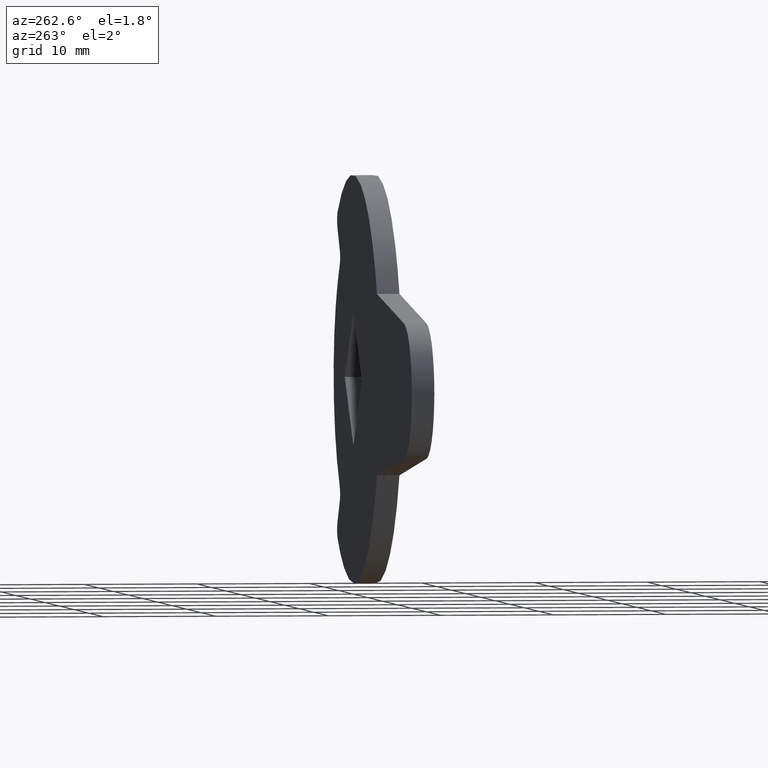
[diagram: clean part render]
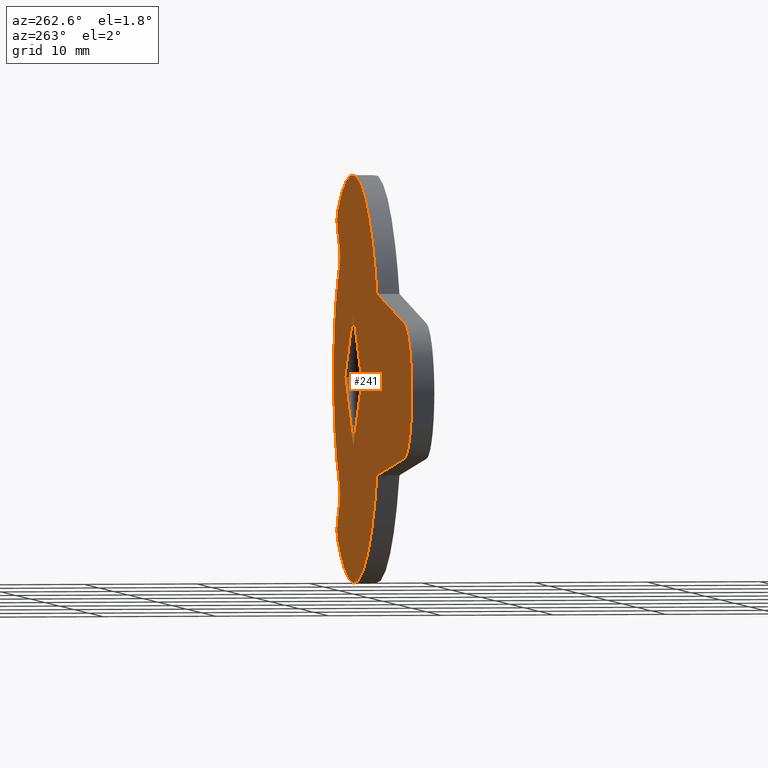
[diagram: same view with one face highlighted and labeled with its STEP entity id]
A machine part, auxiliary view. The second image highlights one B-rep face of the part: STEP entity #241.
In plain terms, the highlighted face is a freeform B-spline surface patch.
Its self-contained STEP definition (entity closure, byte-faithful):
#44=CARTESIAN_POINT('',(-42.672116572253323,0.0,19.798160962117120));
#45=CARTESIAN_POINT('',(16.172309228567340,0.0,19.798160962117120));
#46=CARTESIAN_POINT('',(-42.672116572253323,0.0,-19.798180562017890));
#47=CARTESIAN_POINT('',(16.172309228567340,0.0,-19.798180562017890));
#48=B_SPLINE_SURFACE_WITH_KNOTS('',1,1,((#44,#46),(#45,#47)),.UNSPECIFIED.,.F.,.F.,.U.,(2,2),(2,2),(0.0,58.844425800820659),(0.0,39.596341524135013),.UNSPECIFIED.);
#49=CARTESIAN_POINT('',(10.739072857427660,0.0,14.445526761286960));
#50=VERTEX_POINT('',#49);
#51=CARTESIAN_POINT('',(-16.124516390019298,0.0,7.999998199249760));
#52=VERTEX_POINT('',#51);
#53=CARTESIAN_POINT('',(10.739072857427670,0.0,14.445526761286979));
#54=CARTESIAN_POINT('',(3.984586888391954,0.0,19.466919151968000));
#55=CARTESIAN_POINT('',(-4.199630048120304,0.0,17.503235016676509));
#56=CARTESIAN_POINT('',(-12.383846984632562,0.0,15.539550881385031));
#57=CARTESIAN_POINT('',(-16.124516390019298,0.0,7.999998199249757));
#65=(BOUNDED_CURVE()B_SPLINE_CURVE(2,(#53,#54,#55,#56,#57),.UNSPECIFIED.,.F.,.U.)B_SPLINE_CURVE_WITH_KNOTS((3,2,3),(0.0,0.500000000000000,1.0),.UNSPECIFIED.)CURVE()GEOMETRIC_REPRESENTATION_ITEM()RATIONAL_B_SPLINE_CURVE((1.0,0.905864952288434,1.0,0.905864952288434,1.0))REPRESENTATION_ITEM(''));
#66=EDGE_CURVE('',#50,#52,#65,.T.);
#67=ORIENTED_EDGE('',*,*,#66,.F.);
#68=CARTESIAN_POINT('',(10.903888410533700,0.0,12.994704011808579));
#69=VERTEX_POINT('',#68);
#70=CARTESIAN_POINT('',(10.903888410533691,0.0,12.994704011808590));
#71=CARTESIAN_POINT('',(11.185033449869259,0.0,13.324930315200996));
#72=CARTESIAN_POINT('',(11.136079863433119,0.0,13.755854311945500));
#73=CARTESIAN_POINT('',(11.087126276996973,0.0,14.186778308690002));
#74=CARTESIAN_POINT('',(10.739072857427660,0.0,14.445526761286960));
#82=(BOUNDED_CURVE()B_SPLINE_CURVE(2,(#70,#71,#72,#73,#74),.UNSPECIFIED.,.F.,.U.)B_SPLINE_CURVE_WITH_KNOTS((3,2,3),(0.0,0.500000000000000,1.0),.UNSPECIFIED.)CURVE()GEOMETRIC_REPRESENTATION_ITEM()RATIONAL_B_SPLINE_CURVE((1.0,0.917438250668628,1.0,0.917438250668628,1.0))REPRESENTATION_ITEM(''));
#83=EDGE_CURVE('',#69,#50,#82,.T.);
#84=ORIENTED_EDGE('',*,*,#83,.F.);
#85=CARTESIAN_POINT('',(9.302911589465209,0.0,11.086695988190041));
#86=VERTEX_POINT('',#85);
#87=CARTESIAN_POINT('',(9.302911589465209,0.0,11.086695988190041));
#88=CARTESIAN_POINT('',(10.903888410533700,0.0,12.994704011808579));
#89=QUASI_UNIFORM_CURVE('',1,(#87,#88),.UNSPECIFIED.,.F.,.U.);
#90=EDGE_CURVE('',#86,#69,#89,.T.);
#91=ORIENTED_EDGE('',*,*,#90,.F.);
#92=CARTESIAN_POINT('',(9.370201414459581,0.0,9.718512161401019));
#93=VERTEX_POINT('',#92);
#94=CARTESIAN_POINT('',(9.302911589465223,0.0,11.086695988190030));
#95=CARTESIAN_POINT('',(8.693486324254092,0.0,10.370976687546957));
#96=CARTESIAN_POINT('',(9.370201414459581,0.0,9.718512161401019));
#104=(BOUNDED_CURVE()B_SPLINE_CURVE(2,(#94,#95,#96),.UNSPECIFIED.,.F.,.U.)CURVE()GEOMETRIC_REPRESENTATION_ITEM()QUASI_UNIFORM_CURVE()RATIONAL_B_SPLINE_CURVE((1.0,0.728615029616869,1.0))REPRESENTATION_ITEM(''));
#105=EDGE_CURVE('',#86,#93,#104,.T.);
#106=ORIENTED_EDGE('',*,*,#105,.T.);
#107=CARTESIAN_POINT('',(9.370232998813620,0.0,-9.718481708829620));
#108=VERTEX_POINT('',#107);
#109=CARTESIAN_POINT('',(9.370232998813620,0.0,-9.718481708829620));
#110=CARTESIAN_POINT('',(13.500002456554789,0.0,-5.736679563119537));
#111=CARTESIAN_POINT('',(13.499993134639389,0.0,0.000021937009817));
#112=CARTESIAN_POINT('',(13.499983812723983,0.0,5.736723437139174));
#113=CARTESIAN_POINT('',(9.370201414459583,0.0,9.718512161401019));
#121=(BOUNDED_CURVE()B_SPLINE_CURVE(2,(#109,#110,#111,#112,#113),.UNSPECIFIED.,.F.,.U.)B_SPLINE_CURVE_WITH_KNOTS((3,2,3),(0.0,0.500000000000000,1.0),.UNSPECIFIED.)CURVE()GEOMETRIC_REPRESENTATION_ITEM()RATIONAL_B_SPLINE_CURVE((1.0,0.920350869292249,1.0,0.920350869292249,1.0))REPRESENTATION_ITEM(''));
#122=EDGE_CURVE('',#108,#93,#121,.T.);
#123=ORIENTED_EDGE('',*,*,#122,.F.);
#124=CARTESIAN_POINT('',(9.302911589452830,0.0,-11.086695988175499));
#125=VERTEX_POINT('',#124);
#126=CARTESIAN_POINT('',(9.370232998813631,0.0,-9.718481708829630));
#127=CARTESIAN_POINT('',(8.693520258589841,0.0,-10.370948212983244));
#128=CARTESIAN_POINT('',(9.302911589452831,0.0,-11.086695988175499));
#136=(BOUNDED_CURVE()B_SPLINE_CURVE(2,(#126,#127,#128),.UNSPECIFIED.,.F.,.U.)CURVE()GEOMETRIC_REPRESENTATION_ITEM()QUASI_UNIFORM_CURVE()RATIONAL_B_SPLINE_CURVE((1.0,0.728632280260525,1.0))REPRESENTATION_ITEM(''));
#137=EDGE_CURVE('',#108,#125,#136,.T.);
#138=ORIENTED_EDGE('',*,*,#137,.T.);
#139=CARTESIAN_POINT('',(10.903888410541020,0.0,-12.994704011817319));
#140=VERTEX_POINT('',#139);
#141=CARTESIAN_POINT('',(10.903888410541020,0.0,-12.994704011817319));
#142=CARTESIAN_POINT('',(9.302911589452830,0.0,-11.086695988175499));
#143=QUASI_UNIFORM_CURVE('',1,(#141,#142),.UNSPECIFIED.,.F.,.U.);
#144=EDGE_CURVE('',#140,#125,#143,.T.);
#145=ORIENTED_EDGE('',*,*,#144,.F.);
#146=CARTESIAN_POINT('',(10.739112776660720,0.0,-14.445497084531439));
#147=VERTEX_POINT('',#146);
#148=CARTESIAN_POINT('',(10.739112776660720,0.0,-14.445497084531430));
#149=CARTESIAN_POINT('',(11.087159702480234,0.0,-14.186750629947127));
#150=CARTESIAN_POINT('',(11.136101848851300,0.0,-13.755831778374180));
#151=CARTESIAN_POINT('',(11.185043995222372,0.0,-13.324912926801224));
#152=CARTESIAN_POINT('',(10.903888410541020,0.0,-12.994704011817319));
#160=(BOUNDED_CURVE()B_SPLINE_CURVE(2,(#148,#149,#150,#151,#152),.UNSPECIFIED.,.F.,.U.)B_SPLINE_CURVE_WITH_KNOTS((3,2,3),(0.0,0.500000000000000,1.0),.UNSPECIFIED.)CURVE()GEOMETRIC_REPRESENTATION_ITEM()RATIONAL_B_SPLINE_CURVE((1.0,0.917434344496949,1.0,0.917434344496949,1.0))REPRESENTATION_ITEM(''));
#161=EDGE_CURVE('',#147,#140,#160,.T.);
#162=ORIENTED_EDGE('',*,*,#161,.F.);
#163=CARTESIAN_POINT('',(-16.124516390019249,0.0,-7.999998199249870));
#164=VERTEX_POINT('',#163);
#165=CARTESIAN_POINT('',(-16.124516390019220,0.0,-7.999998199249855));
#166=CARTESIAN_POINT('',(-12.383854566696790,0.0,-15.539582422374766));
#167=CARTESIAN_POINT('',(-4.199610718877521,0.0,-17.503261055320671));
#168=CARTESIAN_POINT('',(3.984633128941750,0.0,-19.466939688266574));
#169=CARTESIAN_POINT('',(10.739112776660701,0.0,-14.445497084531430));
#177=(BOUNDED_CURVE()B_SPLINE_CURVE(2,(#165,#166,#167,#168,#169),.UNSPECIFIED.,.F.,.U.)B_SPLINE_CURVE_WITH_KNOTS((3,2,3),(0.0,0.500000000000000,1.0),.UNSPECIFIED.)CURVE()GEOMETRIC_REPRESENTATION_ITEM()RATIONAL_B_SPLINE_CURVE((1.0,0.905864136016763,1.0,0.905864136016763,1.0))REPRESENTATION_ITEM(''));
#178=EDGE_CURVE('',#164,#147,#177,.T.);
#179=ORIENTED_EDGE('',*,*,#178,.F.);
#180=CARTESIAN_POINT('',(-34.633145301704651,0.0,-5.966479173583750));
#181=VERTEX_POINT('',#180);
#182=CARTESIAN_POINT('',(-34.633145301704651,0.0,-5.966479173583750));
#183=CARTESIAN_POINT('',(-16.124516390019249,0.0,-7.999998199249870));
#184=QUASI_UNIFORM_CURVE('',1,(#182,#183),.UNSPECIFIED.,.F.,.U.);
#185=EDGE_CURVE('',#181,#164,#184,.T.);
#186=ORIENTED_EDGE('',*,*,#185,.F.);
#187=CARTESIAN_POINT('',(-34.633145301685097,0.0,5.966479173585831));
#188=VERTEX_POINT('',#187);
#189=CARTESIAN_POINT('',(-34.633145301685097,0.0,5.966479173585825));
#190=CARTESIAN_POINT('',(-39.999799999991154,0.0,5.396805595575883));
#191=CARTESIAN_POINT('',(-39.999799999999993,0.0,9.828506E-012));
#192=CARTESIAN_POINT('',(-39.999800000008840,0.0,-5.396805595556225));
#193=CARTESIAN_POINT('',(-34.633145301704651,0.0,-5.966479173583751));
#201=(BOUNDED_CURVE()B_SPLINE_CURVE(2,(#189,#190,#191,#192,#193),.UNSPECIFIED.,.F.,.U.)B_SPLINE_CURVE_WITH_KNOTS((3,2,3),(0.0,0.500000000000000,1.0),.UNSPECIFIED.)CURVE()GEOMETRIC_REPRESENTATION_ITEM()RATIONAL_B_SPLINE_CURVE((1.0,0.743490938170224,1.0,0.743490938170224,1.0))REPRESENTATION_ITEM(''));
#202=EDGE_CURVE('',#188,#181,#201,.T.);
#203=ORIENTED_EDGE('',*,*,#202,.F.);
#204=CARTESIAN_POINT('',(-16.124516390019298,0.0,7.999998199249760));
#205=CARTESIAN_POINT('',(-34.633145301685097,0.0,5.966479173585831));
#206=QUASI_UNIFORM_CURVE('',1,(#204,#205),.UNSPECIFIED.,.F.,.U.);
#207=EDGE_CURVE('',#52,#188,#206,.T.);
#208=ORIENTED_EDGE('',*,*,#207,.F.);
#209=EDGE_LOOP('',(#67,#84,#91,#106,#123,#138,#145,#162,#179,#186,#203,#208));
#210=FACE_OUTER_BOUND('',#209,.T.);
#211=CARTESIAN_POINT('',(0.000100000000018,0.0,5.868999999999900));
#212=VERTEX_POINT('',#211);
#213=CARTESIAN_POINT('',(-5.868900000000000,0.0,0.0));
#214=VERTEX_POINT('',#213);
#215=CARTESIAN_POINT('',(0.000100000000018,0.0,5.868999999999900));
#216=CARTESIAN_POINT('',(-5.868900000000000,0.0,0.0));
#217=QUASI_UNIFORM_CURVE('',1,(#215,#216),.UNSPECIFIED.,.F.,.U.);
#218=EDGE_CURVE('',#212,#214,#217,.T.);
#219=ORIENTED_EDGE('',*,*,#218,.T.);
#220=CARTESIAN_POINT('',(0.000100000000018,0.0,-5.869000000000000));
#221=VERTEX_POINT('',#220);
#222=CARTESIAN_POINT('',(-5.868900000000000,0.0,0.0));
#223=CARTESIAN_POINT('',(0.000100000000018,0.0,-5.869000000000000));
#224=QUASI_UNIFORM_CURVE('',1,(#222,#223),.UNSPECIFIED.,.F.,.U.);
#225=EDGE_CURVE('',#214,#221,#224,.T.);
#226=ORIENTED_EDGE('',*,*,#225,.T.);
#227=CARTESIAN_POINT('',(5.869000000000000,0.0,0.0));
#228=VERTEX_POINT('',#227);
#229=CARTESIAN_POINT('',(0.000100000000018,0.0,-5.869000000000000));
#230=CARTESIAN_POINT('',(5.869000000000000,0.0,0.0));
#231=QUASI_UNIFORM_CURVE('',1,(#229,#230),.UNSPECIFIED.,.F.,.U.);
#232=EDGE_CURVE('',#221,#228,#231,.T.);
#233=ORIENTED_EDGE('',*,*,#232,.T.);
#234=CARTESIAN_POINT('',(5.869000000000000,0.0,0.0));
#235=CARTESIAN_POINT('',(0.000100000000018,0.0,5.868999999999900));
#236=QUASI_UNIFORM_CURVE('',1,(#234,#235),.UNSPECIFIED.,.F.,.U.);
#237=EDGE_CURVE('',#228,#212,#236,.T.);
#238=ORIENTED_EDGE('',*,*,#237,.T.);
#239=EDGE_LOOP('',(#219,#226,#233,#238));
#240=FACE_BOUND('',#239,.T.);
#241=ADVANCED_FACE('',(#210,#240),#48,.T.);